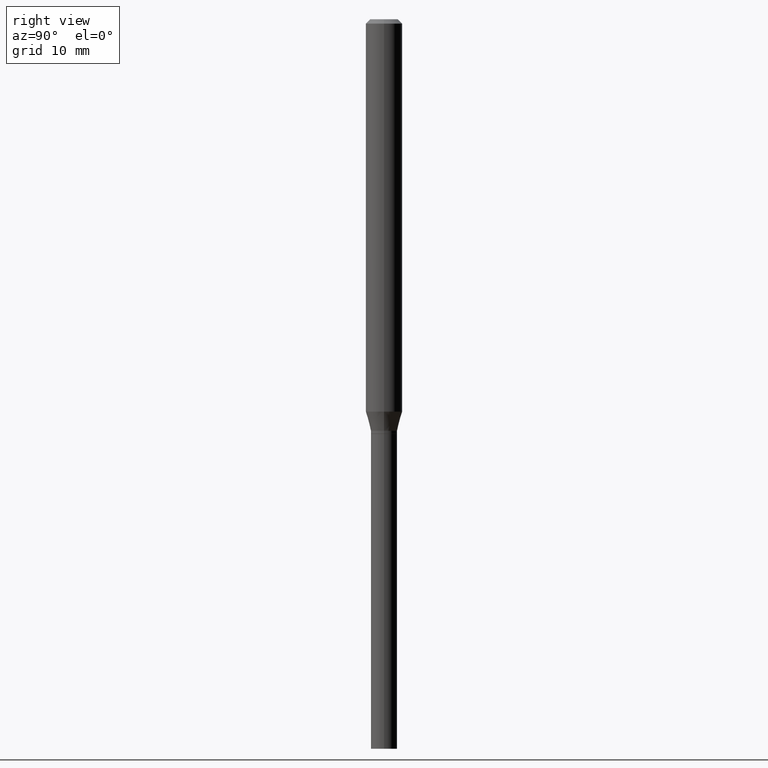
[diagram: clean part render]
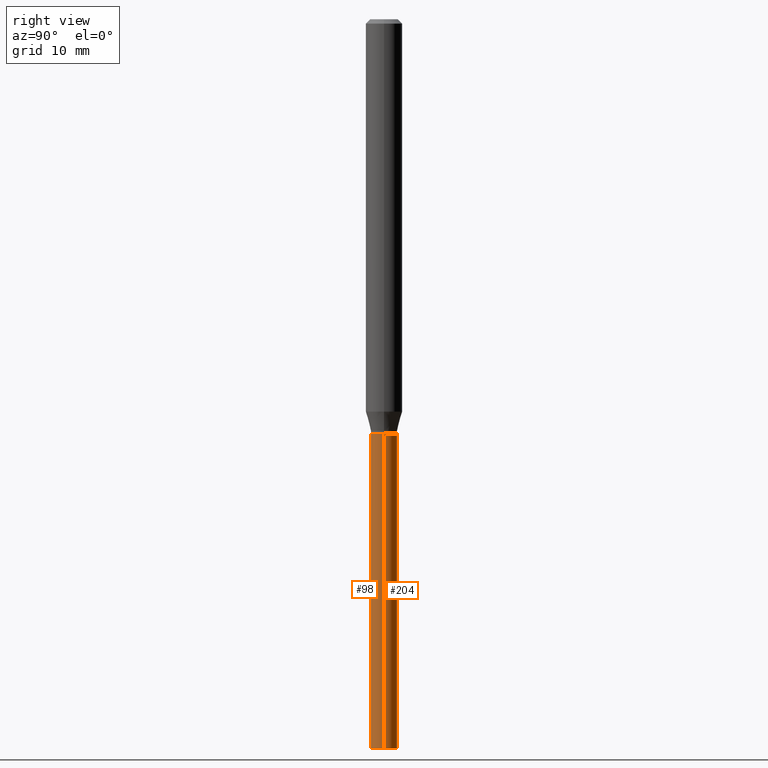
[diagram: same view with one multi-face feature highlighted, each face labeled with its STEP entity id]
A machine part, right view. The highlighted faces form ONE feature: a constant-radius fillet chain: 2 tangent blend faces with common blend radius 1.143 mm. The faces share edges in the B-rep.
Their STEP definitions:
[1] entity #98 (Cylinder):
#12 = FACE_OUTER_BOUND ( 'NONE', #76, .T. ) ;
#19 = ORIENTED_EDGE ( 'NONE', *, *, #459, .T. ) ;
#35 = VERTEX_POINT ( 'NONE', #149 ) ;
#39 = VERTEX_POINT ( 'NONE', #124 ) ;
#55 = VERTEX_POINT ( 'NONE', #296 ) ;
#57 = ORIENTED_EDGE ( 'NONE', *, *, #343, .T. ) ;
#60 = LINE ( 'NONE', #377, #427 ) ;
#74 = EDGE_CURVE ( 'NONE', #35, #55, #60, .T. ) ;
#75 = DIRECTION ( 'NONE',  ( 1.000000000000000000, -6.982962677686246989E-15, 0.000000000000000000 ) ) ;
#76 = EDGE_LOOP ( 'NONE', ( #361, #19, #57, #454 ) ) ;
#88 = AXIS2_PLACEMENT_3D ( 'NONE', #429, #360, #75 ) ;
#98 = ADVANCED_FACE ( 'NONE', ( #12 ), #160, .T. ) ;
#101 = DIRECTION ( 'NONE',  ( 1.000000000000000000, -6.982962677686269077E-15, 0.000000000000000000 ) ) ;
#124 = CARTESIAN_POINT ( 'NONE',  ( 0.04499999999999999833, -5.272136821653149037E-15, -1.420000000000000151 ) ) ;
#145 = VECTOR ( 'NONE', #385, 39.37007874015748143 ) ;
#149 = CARTESIAN_POINT ( 'NONE',  ( -0.04499999999999999833, -6.523559193040520779E-15, -2.500000000000000000 ) ) ;
#155 = DIRECTION ( 'NONE',  ( -2.445468806185136597E-29, 3.491481338843145583E-15, 1.000000000000000000 ) ) ;
#160 = CYLINDRICAL_SURFACE ( 'NONE', #221, 0.04499999999999999833 ) ;
#198 = CIRCLE ( 'NONE', #88, 0.04499999999999999833 ) ;
#209 = CARTESIAN_POINT ( 'NONE',  ( 0.04499999999999999833, -3.142333204958819823E-16, 2.194279549108170967E-30 ) ) ;
#221 = AXIS2_PLACEMENT_3D ( 'NONE', #271, #155, #438 ) ;
#236 = CARTESIAN_POINT ( 'NONE',  ( 3.472565704782894214E-29, -4.957903501157267351E-15, -1.420000000000000151 ) ) ;
#256 = VERTEX_POINT ( 'NONE', #448 ) ;
#257 = EDGE_CURVE ( 'NONE', #55, #39, #308, .T. ) ;
#271 = CARTESIAN_POINT ( 'NONE',  ( 0.000000000000000000, 0.000000000000000000, 0.000000000000000000 ) ) ;
#296 = CARTESIAN_POINT ( 'NONE',  ( -0.04499999999999999833, -6.523559193040520779E-15, -1.420000000000000151 ) ) ;
#308 = CIRCLE ( 'NONE', #363, 0.04499999999999999833 ) ;
#319 = DIRECTION ( 'NONE',  ( -2.445468806185136597E-29, 3.491481338843145583E-15, 1.000000000000000000 ) ) ;
#341 = DIRECTION ( 'NONE',  ( -2.445468806185136877E-29, 3.491481338843145188E-15, 1.000000000000000000 ) ) ;
#343 = EDGE_CURVE ( 'NONE', #256, #39, #392, .T. ) ;
#360 = DIRECTION ( 'NONE',  ( -2.445468806185136597E-29, 3.491481338843145583E-15, 1.000000000000000000 ) ) ;
#361 = ORIENTED_EDGE ( 'NONE', *, *, #74, .F. ) ;
#363 = AXIS2_PLACEMENT_3D ( 'NONE', #236, #319, #101 ) ;
#377 = CARTESIAN_POINT ( 'NONE',  ( -0.04499999999999999833, 3.197442310920450718E-16, -2.213520790614707560E-30 ) ) ;
#385 = DIRECTION ( 'NONE',  ( -2.445468806185136877E-29, 3.491481338843145188E-15, 1.000000000000000000 ) ) ;
#392 = LINE ( 'NONE', #209, #145 ) ;
#427 = VECTOR ( 'NONE', #341, 39.37007874015748143 ) ;
#429 = CARTESIAN_POINT ( 'NONE',  ( 6.113672015462842613E-29, -8.728703347107864943E-15, -2.500000000000000000 ) ) ;
#438 = DIRECTION ( 'NONE',  ( 1.000000000000000000, -6.982962677686266711E-15, 4.876176775795935793E-29 ) ) ;
#448 = CARTESIAN_POINT ( 'NONE',  ( 0.04499999999999999833, -9.042936667603745051E-15, -2.500000000000000000 ) ) ;
#454 = ORIENTED_EDGE ( 'NONE', *, *, #257, .F. ) ;
#459 = EDGE_CURVE ( 'NONE', #35, #256, #198, .T. ) ;
[2] entity #204 (Cylinder):
#13 = ORIENTED_EDGE ( 'NONE', *, *, #251, .F. ) ;
#16 = DIRECTION ( 'NONE',  ( 1.000000000000000000, -6.982962677686246989E-15, 0.000000000000000000 ) ) ;
#24 = DIRECTION ( 'NONE',  ( -2.445468806185136597E-29, 3.491481338843145583E-15, 1.000000000000000000 ) ) ;
#35 = VERTEX_POINT ( 'NONE', #149 ) ;
#39 = VERTEX_POINT ( 'NONE', #124 ) ;
#55 = VERTEX_POINT ( 'NONE', #296 ) ;
#58 = DIRECTION ( 'NONE',  ( -2.445468806185136597E-29, 3.491481338843145583E-15, 1.000000000000000000 ) ) ;
#60 = LINE ( 'NONE', #377, #427 ) ;
#65 = DIRECTION ( 'NONE',  ( -2.445468806185136597E-29, 3.491481338843145583E-15, 1.000000000000000000 ) ) ;
#67 = CYLINDRICAL_SURFACE ( 'NONE', #355, 0.04499999999999999833 ) ;
#74 = EDGE_CURVE ( 'NONE', #35, #55, #60, .T. ) ;
#79 = EDGE_CURVE ( 'NONE', #256, #35, #373, .T. ) ;
#100 = CARTESIAN_POINT ( 'NONE',  ( 0.000000000000000000, 0.000000000000000000, 0.000000000000000000 ) ) ;
#124 = CARTESIAN_POINT ( 'NONE',  ( 0.04499999999999999833, -5.272136821653149037E-15, -1.420000000000000151 ) ) ;
#137 = CARTESIAN_POINT ( 'NONE',  ( 3.472565704782894214E-29, -4.957903501157267351E-15, -1.420000000000000151 ) ) ;
#145 = VECTOR ( 'NONE', #385, 39.37007874015748143 ) ;
#149 = CARTESIAN_POINT ( 'NONE',  ( -0.04499999999999999833, -6.523559193040520779E-15, -2.500000000000000000 ) ) ;
#150 = AXIS2_PLACEMENT_3D ( 'NONE', #137, #24, #203 ) ;
#197 = CIRCLE ( 'NONE', #150, 0.04499999999999999833 ) ;
#203 = DIRECTION ( 'NONE',  ( 1.000000000000000000, -6.982962677686269077E-15, 0.000000000000000000 ) ) ;
#204 = ADVANCED_FACE ( 'NONE', ( #346 ), #67, .T. ) ;
#209 = CARTESIAN_POINT ( 'NONE',  ( 0.04499999999999999833, -3.142333204958819823E-16, 2.194279549108170967E-30 ) ) ;
#225 = ORIENTED_EDGE ( 'NONE', *, *, #343, .F. ) ;
#235 = CARTESIAN_POINT ( 'NONE',  ( 6.113672015462842613E-29, -8.728703347107864943E-15, -2.500000000000000000 ) ) ;
#251 = EDGE_CURVE ( 'NONE', #39, #55, #197, .T. ) ;
#256 = VERTEX_POINT ( 'NONE', #448 ) ;
#290 = ORIENTED_EDGE ( 'NONE', *, *, #79, .T. ) ;
#296 = CARTESIAN_POINT ( 'NONE',  ( -0.04499999999999999833, -6.523559193040520779E-15, -1.420000000000000151 ) ) ;
#318 = ORIENTED_EDGE ( 'NONE', *, *, #74, .T. ) ;
#341 = DIRECTION ( 'NONE',  ( -2.445468806185136877E-29, 3.491481338843145188E-15, 1.000000000000000000 ) ) ;
#343 = EDGE_CURVE ( 'NONE', #256, #39, #392, .T. ) ;
#346 = FACE_OUTER_BOUND ( 'NONE', #403, .T. ) ;
#355 = AXIS2_PLACEMENT_3D ( 'NONE', #100, #65, #416 ) ;
#373 = CIRCLE ( 'NONE', #463, 0.04499999999999999833 ) ;
#377 = CARTESIAN_POINT ( 'NONE',  ( -0.04499999999999999833, 3.197442310920450718E-16, -2.213520790614707560E-30 ) ) ;
#385 = DIRECTION ( 'NONE',  ( -2.445468806185136877E-29, 3.491481338843145188E-15, 1.000000000000000000 ) ) ;
#392 = LINE ( 'NONE', #209, #145 ) ;
#403 = EDGE_LOOP ( 'NONE', ( #290, #318, #13, #225 ) ) ;
#416 = DIRECTION ( 'NONE',  ( 1.000000000000000000, -6.982962677686266711E-15, 4.876176775795935793E-29 ) ) ;
#427 = VECTOR ( 'NONE', #341, 39.37007874015748143 ) ;
#448 = CARTESIAN_POINT ( 'NONE',  ( 0.04499999999999999833, -9.042936667603745051E-15, -2.500000000000000000 ) ) ;
#463 = AXIS2_PLACEMENT_3D ( 'NONE', #235, #58, #16 ) ;